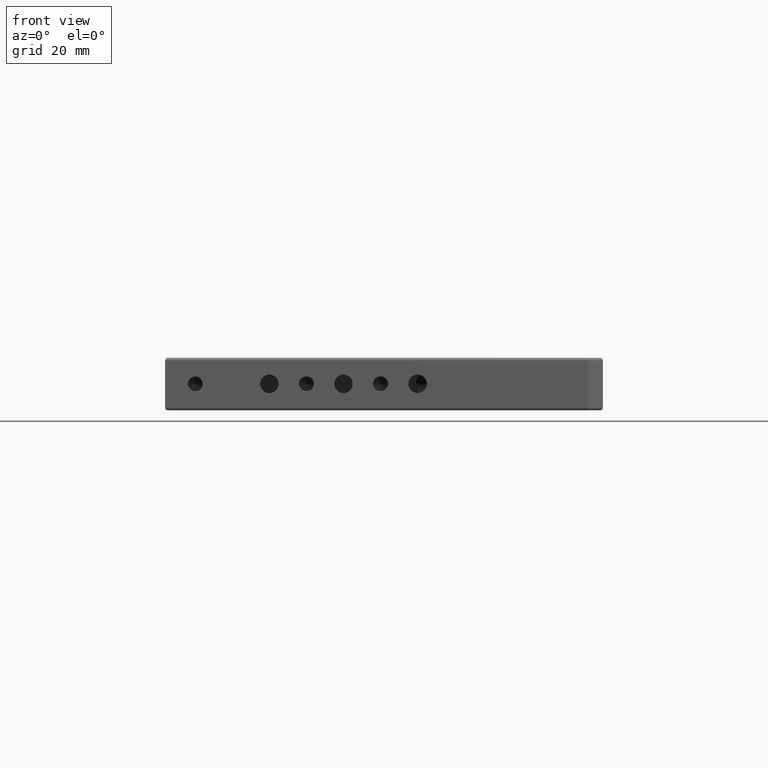
[diagram: clean part render]
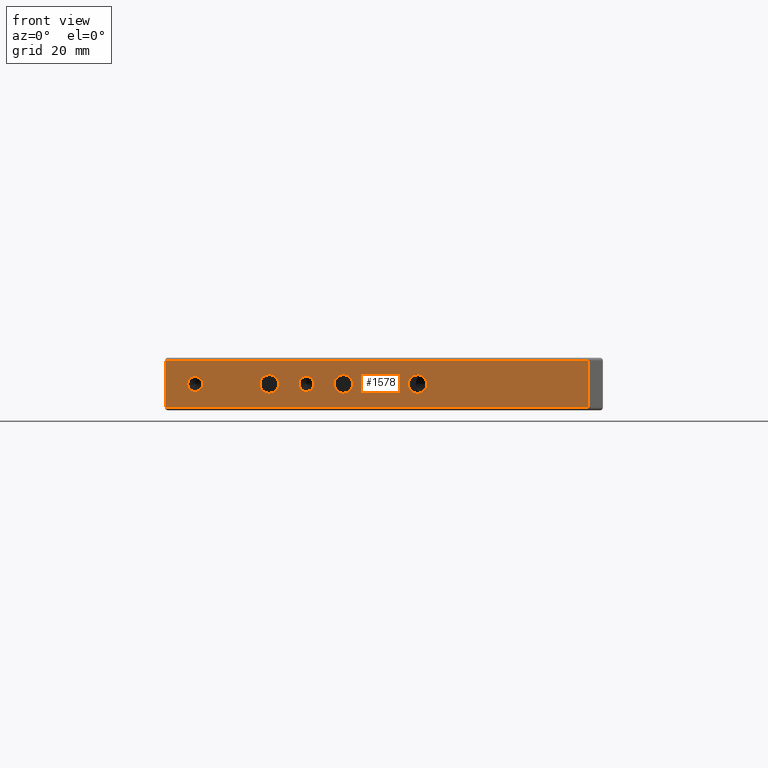
[diagram: same view with one face highlighted and labeled with its STEP entity id]
A machine part, front view. The second image highlights one B-rep face of the part: STEP entity #1578.
In plain terms, the highlighted planar face has unit normal (0, 1, 0).
Its self-contained STEP definition (entity closure, byte-faithful):
#66 = AXIS2_PLACEMENT_3D ( 'NONE', #2723, #577, #3085 ) ;
#68 = CARTESIAN_POINT ( 'NONE',  ( 0.0000000000000000000, 0.0000000000000000000, 16.99999999999999600 ) ) ;
#105 = EDGE_CURVE ( 'NONE', #2258, #559, #4259, .T. ) ;
#188 = DIRECTION ( 'NONE',  ( 1.000000000000000000, -0.0000000000000000000, 0.0000000000000000000 ) ) ;
#190 = AXIS2_PLACEMENT_3D ( 'NONE', #569, #3074, #930 ) ;
#233 = ORIENTED_EDGE ( 'NONE', *, *, #821, .F. ) ;
#246 = VERTEX_POINT ( 'NONE', #1364 ) ;
#250 = AXIS2_PLACEMENT_3D ( 'NONE', #1699, #3844, #1338 ) ;
#259 = DIRECTION ( 'NONE',  ( 0.0000000000000000000, 1.000000000000000000, 0.0000000000000000000 ) ) ;
#269 = EDGE_CURVE ( 'NONE', #2968, #1228, #2892, .T. ) ;
#292 = EDGE_LOOP ( 'NONE', ( #714, #3205 ) ) ;
#310 = FACE_BOUND ( 'NONE', #404, .T. ) ;
#361 = EDGE_CURVE ( 'NONE', #1228, #2968, #2571, .T. ) ;
#386 = CARTESIAN_POINT ( 'NONE',  ( 35.69999999999999600, 0.0000000000000000000, 12.17499999999999700 ) ) ;
#404 = EDGE_LOOP ( 'NONE', ( #3441, #3419 ) ) ;
#510 = VERTEX_POINT ( 'NONE', #4660 ) ;
#543 = CARTESIAN_POINT ( 'NONE',  ( 86.50000000000000000, 0.0000000000000000000, 5.825000000000002000 ) ) ;
#559 = VERTEX_POINT ( 'NONE', #1795 ) ;
#562 = CIRCLE ( 'NONE', #3764, 2.552699999999998000 ) ;
#569 = CARTESIAN_POINT ( 'NONE',  ( 48.39999999999999100, 6.453888631506435000E-018, 9.000000000000007100 ) ) ;
#575 = VERTEX_POINT ( 'NONE', #2191 ) ;
#577 = DIRECTION ( 'NONE',  ( -0.0000000000000000000, -1.000000000000000000, -0.0000000000000000000 ) ) ;
#623 = EDGE_LOOP ( 'NONE', ( #1399, #1636 ) ) ;
#670 = ORIENTED_EDGE ( 'NONE', *, *, #3065, .T. ) ;
#713 = LINE ( 'NONE', #3048, #1443 ) ;
#714 = ORIENTED_EDGE ( 'NONE', *, *, #2425, .T. ) ;
#750 = DIRECTION ( 'NONE',  ( 0.0000000000000000000, 0.0000000000000000000, 1.000000000000000000 ) ) ;
#809 = DIRECTION ( 'NONE',  ( 0.0000000000000000000, 1.000000000000000000, 0.0000000000000000000 ) ) ;
#818 = PLANE ( 'NONE',  #3994 ) ;
#821 = EDGE_CURVE ( 'NONE', #1618, #4651, #2785, .T. ) ;
#916 = CARTESIAN_POINT ( 'NONE',  ( 48.39999999999999100, 6.453888631506435000E-018, 9.000000000000007100 ) ) ;
#919 = EDGE_CURVE ( 'NONE', #246, #3568, #1261, .T. ) ;
#930 = DIRECTION ( 'NONE',  ( 0.0000000000000000000, 0.0000000000000000000, -1.000000000000000000 ) ) ;
#1087 = CIRCLE ( 'NONE', #4108, 3.174999999999997200 ) ;
#1108 = ORIENTED_EDGE ( 'NONE', *, *, #105, .T. ) ;
#1137 = AXIS2_PLACEMENT_3D ( 'NONE', #2412, #259, #2767 ) ;
#1228 = VERTEX_POINT ( 'NONE', #386 ) ;
#1229 = DIRECTION ( 'NONE',  ( 0.0000000000000000000, 0.0000000000000000000, 1.000000000000000000 ) ) ;
#1254 = FACE_BOUND ( 'NONE', #292, .T. ) ;
#1261 = CIRCLE ( 'NONE', #3860, 2.552699999999998000 ) ;
#1262 = DIRECTION ( 'NONE',  ( 0.0000000000000000000, 0.0000000000000000000, -1.000000000000000000 ) ) ;
#1296 = CARTESIAN_POINT ( 'NONE',  ( 73.79999999999999700, 6.453888631506435000E-018, 11.55270000000000000 ) ) ;
#1338 = DIRECTION ( 'NONE',  ( 0.0000000000000000000, 0.0000000000000000000, 1.000000000000000000 ) ) ;
#1341 = DIRECTION ( 'NONE',  ( -0.0000000000000000000, -1.000000000000000000, -0.0000000000000000000 ) ) ;
#1364 = CARTESIAN_POINT ( 'NONE',  ( 48.39999999999999100, 6.453888631506435000E-018, 11.55270000000000500 ) ) ;
#1399 = ORIENTED_EDGE ( 'NONE', *, *, #2739, .F. ) ;
#1432 = AXIS2_PLACEMENT_3D ( 'NONE', #4262, #2111, #750 ) ;
#1443 = VECTOR ( 'NONE', #188, 1000.000000000000000 ) ;
#1468 = AXIS2_PLACEMENT_3D ( 'NONE', #1641, #4156, #2003 ) ;
#1498 = EDGE_LOOP ( 'NONE', ( #1961, #233 ) ) ;
#1548 = CARTESIAN_POINT ( 'NONE',  ( 61.09999999999999400, 0.0000000000000000000, 12.17499999999999700 ) ) ;
#1578 = ADVANCED_FACE ( 'NONE', ( #2338, #3275, #2219, #1254, #310, #4014, #3055 ), #818, .F. ) ;
#1587 = CIRCLE ( 'NONE', #1839, 3.174999999999997200 ) ;
#1613 = VECTOR ( 'NONE', #1614, 1000.000000000000000 ) ;
#1614 = DIRECTION ( 'NONE',  ( -0.0000000000000000000, -0.0000000000000000000, -1.000000000000000000 ) ) ;
#1618 = VERTEX_POINT ( 'NONE', #4085 ) ;
#1636 = ORIENTED_EDGE ( 'NONE', *, *, #2822, .F. ) ;
#1641 = CARTESIAN_POINT ( 'NONE',  ( 10.29999999999999000, 6.453888631506435000E-018, 8.999999999999998200 ) ) ;
#1693 = EDGE_LOOP ( 'NONE', ( #670, #1840, #1108, #3430 ) ) ;
#1699 = CARTESIAN_POINT ( 'NONE',  ( 35.69999999999999600, 0.0000000000000000000, 9.000000000000000000 ) ) ;
#1792 = VERTEX_POINT ( 'NONE', #1918 ) ;
#1795 = CARTESIAN_POINT ( 'NONE',  ( 0.0000000000000000000, 0.0000000000000000000, 1.000000000000000900 ) ) ;
#1801 = EDGE_LOOP ( 'NONE', ( #3625, #3956 ) ) ;
#1809 = DIRECTION ( 'NONE',  ( 0.0000000000000000000, 1.000000000000000000, 0.0000000000000000000 ) ) ;
#1839 = AXIS2_PLACEMENT_3D ( 'NONE', #3961, #1809, #4332 ) ;
#1840 = ORIENTED_EDGE ( 'NONE', *, *, #3460, .T. ) ;
#1896 = DIRECTION ( 'NONE',  ( 0.0000000000000000000, -0.0000000000000000000, 1.000000000000000000 ) ) ;
#1918 = CARTESIAN_POINT ( 'NONE',  ( 73.79999999999999700, 6.453888631506435000E-018, 6.447300000000017100 ) ) ;
#1938 = CARTESIAN_POINT ( 'NONE',  ( 0.0000000000000000000, 0.0000000000000000000, 16.99999999999999600 ) ) ;
#1947 = LINE ( 'NONE', #1938, #3859 ) ;
#1961 = ORIENTED_EDGE ( 'NONE', *, *, #2681, .F. ) ;
#1977 = CARTESIAN_POINT ( 'NONE',  ( 10.29999999999999000, 6.453888631506435000E-018, 8.999999999999998200 ) ) ;
#1997 = AXIS2_PLACEMENT_3D ( 'NONE', #3491, #1341, #3846 ) ;
#2003 = DIRECTION ( 'NONE',  ( 0.0000000000000000000, 0.0000000000000000000, -1.000000000000000000 ) ) ;
#2029 = CIRCLE ( 'NONE', #1997, 2.552699999999990900 ) ;
#2111 = DIRECTION ( 'NONE',  ( 0.0000000000000000000, 1.000000000000000000, 0.0000000000000000000 ) ) ;
#2114 = DIRECTION ( 'NONE',  ( 0.0000000000000000000, 1.000000000000000000, 0.0000000000000000000 ) ) ;
#2191 = CARTESIAN_POINT ( 'NONE',  ( 145.0000000000000000, 0.0000000000000000000, 16.99999999999999600 ) ) ;
#2204 = CARTESIAN_POINT ( 'NONE',  ( 86.50000000000000000, 0.0000000000000000000, 12.17499999999999700 ) ) ;
#2219 = FACE_BOUND ( 'NONE', #623, .T. ) ;
#2258 = VERTEX_POINT ( 'NONE', #68 ) ;
#2292 = EDGE_CURVE ( 'NONE', #510, #3884, #2488, .T. ) ;
#2312 = VERTEX_POINT ( 'NONE', #4052 ) ;
#2338 = FACE_BOUND ( 'NONE', #1498, .T. ) ;
#2340 = DIRECTION ( 'NONE',  ( 0.0000000000000000000, 0.0000000000000000000, -1.000000000000000000 ) ) ;
#2356 = EDGE_CURVE ( 'NONE', #3568, #246, #3927, .T. ) ;
#2412 = CARTESIAN_POINT ( 'NONE',  ( 86.50000000000000000, 0.0000000000000000000, 9.000000000000000000 ) ) ;
#2425 = EDGE_CURVE ( 'NONE', #3303, #3519, #3586, .T. ) ;
#2427 = EDGE_LOOP ( 'NONE', ( #3533, #4538 ) ) ;
#2488 = CIRCLE ( 'NONE', #3156, 3.174999999999997200 ) ;
#2495 = CARTESIAN_POINT ( 'NONE',  ( 35.69999999999999600, 0.0000000000000000000, 5.825000000000002000 ) ) ;
#2547 = CARTESIAN_POINT ( 'NONE',  ( 10.29999999999999000, 6.453888631506435000E-018, 6.447299999999999400 ) ) ;
#2571 = CIRCLE ( 'NONE', #1432, 3.174999999999997200 ) ;
#2613 = CARTESIAN_POINT ( 'NONE',  ( 0.0000000000000000000, 0.0000000000000000000, 18.00000000000000000 ) ) ;
#2681 = EDGE_CURVE ( 'NONE', #4651, #1618, #562, .T. ) ;
#2723 = CARTESIAN_POINT ( 'NONE',  ( 73.79999999999999700, 6.453888631506435000E-018, 9.000000000000007100 ) ) ;
#2739 = EDGE_CURVE ( 'NONE', #1792, #4394, #3313, .T. ) ;
#2748 = VECTOR ( 'NONE', #1229, 1000.000000000000000 ) ;
#2767 = DIRECTION ( 'NONE',  ( 0.0000000000000000000, 0.0000000000000000000, 1.000000000000000000 ) ) ;
#2785 = CIRCLE ( 'NONE', #1468, 2.552699999999998000 ) ;
#2822 = EDGE_CURVE ( 'NONE', #4394, #1792, #2029, .T. ) ;
#2892 = CIRCLE ( 'NONE', #250, 3.174999999999997200 ) ;
#2956 = CARTESIAN_POINT ( 'NONE',  ( 61.09999999999999400, 0.0000000000000000000, 9.000000000000000000 ) ) ;
#2968 = VERTEX_POINT ( 'NONE', #2495 ) ;
#3048 = CARTESIAN_POINT ( 'NONE',  ( 0.0000000000000000000, 0.0000000000000000000, 1.000000000000000900 ) ) ;
#3055 = FACE_OUTER_BOUND ( 'NONE', #1693, .T. ) ;
#3065 = EDGE_CURVE ( 'NONE', #2312, #575, #4650, .T. ) ;
#3074 = DIRECTION ( 'NONE',  ( -0.0000000000000000000, -1.000000000000000000, -0.0000000000000000000 ) ) ;
#3085 = DIRECTION ( 'NONE',  ( 0.0000000000000000000, 0.0000000000000000000, -1.000000000000000000 ) ) ;
#3129 = EDGE_CURVE ( 'NONE', #559, #2312, #713, .T. ) ;
#3156 = AXIS2_PLACEMENT_3D ( 'NONE', #2956, #809, #3318 ) ;
#3205 = ORIENTED_EDGE ( 'NONE', *, *, #4521, .T. ) ;
#3275 = FACE_BOUND ( 'NONE', #2427, .T. ) ;
#3303 = VERTEX_POINT ( 'NONE', #2204 ) ;
#3313 = CIRCLE ( 'NONE', #66, 2.552699999999990900 ) ;
#3318 = DIRECTION ( 'NONE',  ( 0.0000000000000000000, 0.0000000000000000000, 1.000000000000000000 ) ) ;
#3380 = CARTESIAN_POINT ( 'NONE',  ( 145.0000000000000000, 0.0000000000000000000, 18.00000000000000000 ) ) ;
#3419 = ORIENTED_EDGE ( 'NONE', *, *, #2292, .T. ) ;
#3423 = DIRECTION ( 'NONE',  ( -0.0000000000000000000, -1.000000000000000000, -0.0000000000000000000 ) ) ;
#3430 = ORIENTED_EDGE ( 'NONE', *, *, #3129, .T. ) ;
#3441 = ORIENTED_EDGE ( 'NONE', *, *, #4630, .T. ) ;
#3460 = EDGE_CURVE ( 'NONE', #575, #2258, #1947, .T. ) ;
#3491 = CARTESIAN_POINT ( 'NONE',  ( 73.79999999999999700, 6.453888631506435000E-018, 9.000000000000007100 ) ) ;
#3519 = VERTEX_POINT ( 'NONE', #543 ) ;
#3533 = ORIENTED_EDGE ( 'NONE', *, *, #2356, .F. ) ;
#3568 = VERTEX_POINT ( 'NONE', #4166 ) ;
#3586 = CIRCLE ( 'NONE', #1137, 3.174999999999997200 ) ;
#3625 = ORIENTED_EDGE ( 'NONE', *, *, #361, .T. ) ;
#3764 = AXIS2_PLACEMENT_3D ( 'NONE', #1977, #4489, #2340 ) ;
#3768 = CARTESIAN_POINT ( 'NONE',  ( 0.0000000000000000000, 0.0000000000000000000, 18.00000000000000000 ) ) ;
#3844 = DIRECTION ( 'NONE',  ( 0.0000000000000000000, 1.000000000000000000, 0.0000000000000000000 ) ) ;
#3846 = DIRECTION ( 'NONE',  ( 0.0000000000000000000, 0.0000000000000000000, -1.000000000000000000 ) ) ;
#3859 = VECTOR ( 'NONE', #4460, 1000.000000000000000 ) ;
#3860 = AXIS2_PLACEMENT_3D ( 'NONE', #916, #3423, #1262 ) ;
#3884 = VERTEX_POINT ( 'NONE', #1548 ) ;
#3927 = CIRCLE ( 'NONE', #190, 2.552699999999998000 ) ;
#3956 = ORIENTED_EDGE ( 'NONE', *, *, #269, .T. ) ;
#3961 = CARTESIAN_POINT ( 'NONE',  ( 61.09999999999999400, 0.0000000000000000000, 9.000000000000000000 ) ) ;
#3994 = AXIS2_PLACEMENT_3D ( 'NONE', #2613, #4064, #1896 ) ;
#4014 = FACE_BOUND ( 'NONE', #1801, .T. ) ;
#4052 = CARTESIAN_POINT ( 'NONE',  ( 145.0000000000000000, 0.0000000000000000000, 1.000000000000000900 ) ) ;
#4064 = DIRECTION ( 'NONE',  ( 0.0000000000000000000, 1.000000000000000000, 0.0000000000000000000 ) ) ;
#4085 = CARTESIAN_POINT ( 'NONE',  ( 10.29999999999999000, 6.453888631506435000E-018, 11.55269999999999600 ) ) ;
#4108 = AXIS2_PLACEMENT_3D ( 'NONE', #4270, #2114, #4624 ) ;
#4156 = DIRECTION ( 'NONE',  ( -0.0000000000000000000, -1.000000000000000000, -0.0000000000000000000 ) ) ;
#4166 = CARTESIAN_POINT ( 'NONE',  ( 48.39999999999999100, 6.453888631506435000E-018, 6.447300000000008200 ) ) ;
#4259 = LINE ( 'NONE', #3768, #1613 ) ;
#4262 = CARTESIAN_POINT ( 'NONE',  ( 35.69999999999999600, 0.0000000000000000000, 9.000000000000000000 ) ) ;
#4270 = CARTESIAN_POINT ( 'NONE',  ( 86.50000000000000000, 0.0000000000000000000, 9.000000000000000000 ) ) ;
#4332 = DIRECTION ( 'NONE',  ( 0.0000000000000000000, 0.0000000000000000000, 1.000000000000000000 ) ) ;
#4394 = VERTEX_POINT ( 'NONE', #1296 ) ;
#4460 = DIRECTION ( 'NONE',  ( -1.000000000000000000, 0.0000000000000000000, -0.0000000000000000000 ) ) ;
#4489 = DIRECTION ( 'NONE',  ( -0.0000000000000000000, -1.000000000000000000, -0.0000000000000000000 ) ) ;
#4521 = EDGE_CURVE ( 'NONE', #3519, #3303, #1087, .T. ) ;
#4538 = ORIENTED_EDGE ( 'NONE', *, *, #919, .F. ) ;
#4624 = DIRECTION ( 'NONE',  ( 0.0000000000000000000, 0.0000000000000000000, 1.000000000000000000 ) ) ;
#4630 = EDGE_CURVE ( 'NONE', #3884, #510, #1587, .T. ) ;
#4650 = LINE ( 'NONE', #3380, #2748 ) ;
#4651 = VERTEX_POINT ( 'NONE', #2547 ) ;
#4660 = CARTESIAN_POINT ( 'NONE',  ( 61.09999999999999400, 0.0000000000000000000, 5.825000000000002000 ) ) ;